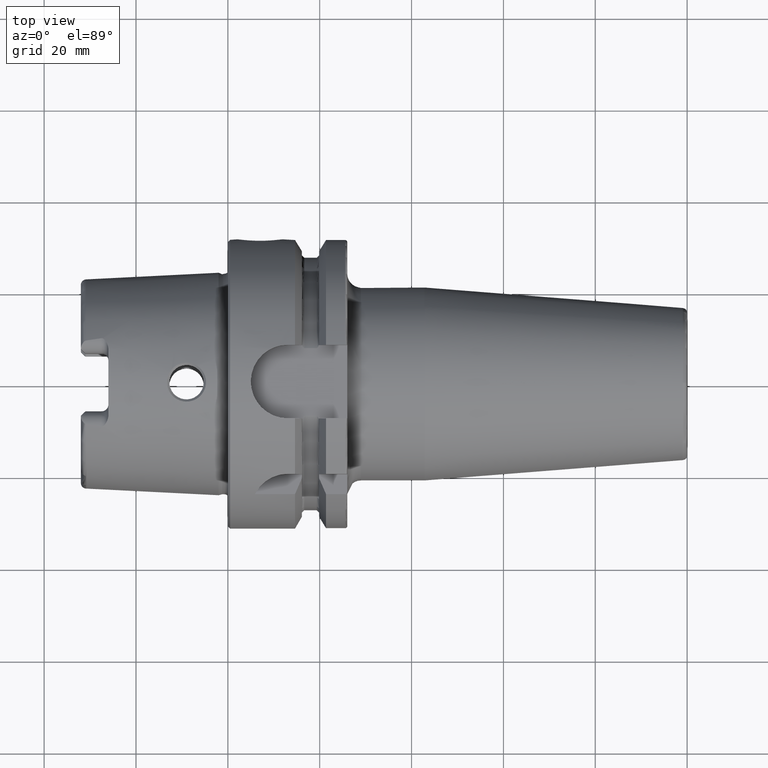
[diagram: clean part render]
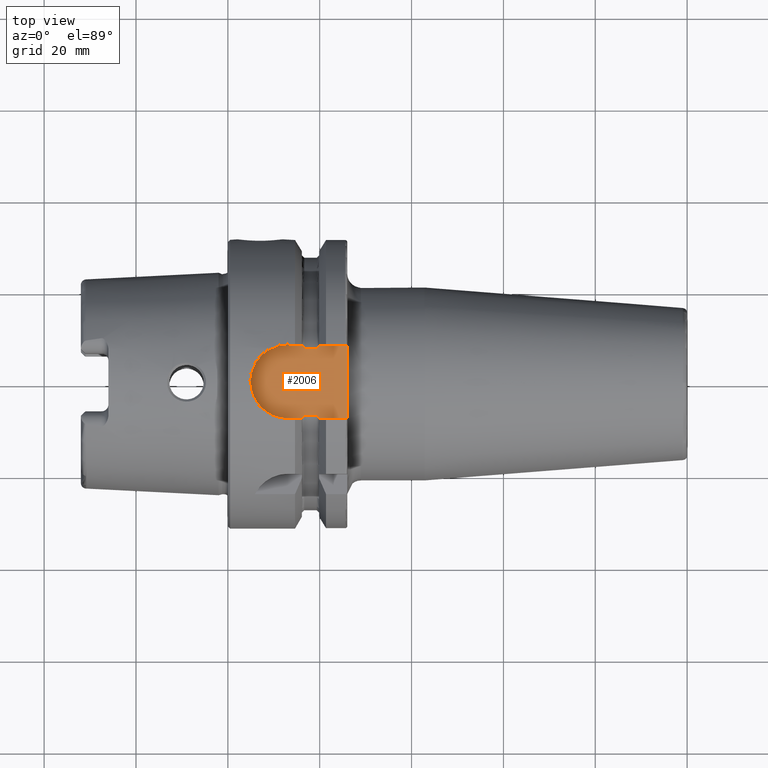
[diagram: same view with one face highlighted and labeled with its STEP entity id]
A machine part, top view. The second image highlights one B-rep face of the part: STEP entity #2006.
In plain terms, the highlighted planar face has unit normal (0, 0, 1).
Its self-contained STEP definition (entity closure, byte-faithful):
#76=B_SPLINE_CURVE_WITH_KNOTS('',3,(#4049,#4050,#4051,#4052,#4053,#4054,
#4055,#4056,#4057,#4058),.UNSPECIFIED.,.F.,.F.,(4,2,2,2,4),(0.252714277572707,
0.289228035148658,0.316691561230897,0.323545183976989,0.328785692776271),
 .UNSPECIFIED.);
#77=B_SPLINE_CURVE_WITH_KNOTS('',3,(#4064,#4065,#4066,#4067,#4068,#4069,
#4070,#4071,#4072,#4073),.UNSPECIFIED.,.F.,.F.,(4,2,2,2,4),(0.328785692776271,
0.334026201575553,0.340879824321645,0.368343350403883,0.404857107979834),
 .UNSPECIFIED.);
#80=B_SPLINE_CURVE_WITH_KNOTS('',3,(#4118,#4119,#4120,#4121,#4122,#4123,
#4124,#4125,#4126,#4127),.UNSPECIFIED.,.F.,.F.,(4,2,2,2,4),(0.32878569277627,
0.334026201575551,0.340879824321645,0.368343350403882,0.404857107979833),
 .UNSPECIFIED.);
#83=B_SPLINE_CURVE_WITH_KNOTS('',3,(#4144,#4145,#4146,#4147,#4148,#4149,
#4150,#4151,#4152,#4153),.UNSPECIFIED.,.F.,.F.,(4,2,2,2,4),(0.252714277572707,
0.289228035148658,0.316691561230896,0.323545183976989,0.32878569277627),
 .UNSPECIFIED.);
#139=PLANE('',#2228);
#281=FACE_OUTER_BOUND('',#403,.T.);
#403=EDGE_LOOP('',(#1701,#1702,#1703,#1704,#1705,#1706,#1707,#1708,#1709,
#1710,#1711,#1712));
#459=LINE('',#2972,#565);
#529=LINE('',#4103,#635);
#530=LINE('',#4108,#636);
#532=LINE('',#4157,#638);
#533=LINE('',#4160,#639);
#537=LINE('',#4192,#643);
#539=LINE('',#4195,#645);
#565=VECTOR('',#2376,10.);
#635=VECTOR('',#2680,10.);
#636=VECTOR('',#2687,10.);
#638=VECTOR('',#2705,10.);
#639=VECTOR('',#2708,10.);
#643=VECTOR('',#2718,10.);
#645=VECTOR('',#2722,10.);
#738=CIRCLE('',#2225,8.);
#805=VERTEX_POINT('',#2969);
#806=VERTEX_POINT('',#2971);
#940=VERTEX_POINT('',#4041);
#941=VERTEX_POINT('',#4048);
#942=VERTEX_POINT('',#4061);
#943=VERTEX_POINT('',#4063);
#946=VERTEX_POINT('',#4102);
#947=VERTEX_POINT('',#4106);
#949=VERTEX_POINT('',#4117);
#951=VERTEX_POINT('',#4137);
#952=VERTEX_POINT('',#4159);
#956=VERTEX_POINT('',#4188);
#1012=EDGE_CURVE('',#805,#806,#459,.T.);
#1196=EDGE_CURVE('',#940,#941,#76,.T.);
#1199=EDGE_CURVE('',#942,#943,#77,.T.);
#1207=EDGE_CURVE('',#941,#946,#529,.T.);
#1210=EDGE_CURVE('',#947,#942,#530,.T.);
#1213=EDGE_CURVE('',#946,#949,#80,.T.);
#1217=EDGE_CURVE('',#951,#947,#83,.T.);
#1219=EDGE_CURVE('',#951,#806,#532,.T.);
#1220=EDGE_CURVE('',#952,#943,#533,.T.);
#1225=EDGE_CURVE('',#956,#952,#738,.T.);
#1227=EDGE_CURVE('',#805,#949,#537,.T.);
#1229=EDGE_CURVE('',#940,#956,#539,.T.);
#1701=ORIENTED_EDGE('',*,*,#1199,.F.);
#1702=ORIENTED_EDGE('',*,*,#1210,.F.);
#1703=ORIENTED_EDGE('',*,*,#1217,.F.);
#1704=ORIENTED_EDGE('',*,*,#1219,.T.);
#1705=ORIENTED_EDGE('',*,*,#1012,.F.);
#1706=ORIENTED_EDGE('',*,*,#1227,.T.);
#1707=ORIENTED_EDGE('',*,*,#1213,.F.);
#1708=ORIENTED_EDGE('',*,*,#1207,.F.);
#1709=ORIENTED_EDGE('',*,*,#1196,.F.);
#1710=ORIENTED_EDGE('',*,*,#1229,.T.);
#1711=ORIENTED_EDGE('',*,*,#1225,.T.);
#1712=ORIENTED_EDGE('',*,*,#1220,.T.);
#2006=ADVANCED_FACE('',(#281),#139,.T.);
#2225=AXIS2_PLACEMENT_3D('',#4189,#2713,#2714);
#2228=AXIS2_PLACEMENT_3D('',#4196,#2723,#2724);
#2376=DIRECTION('',(0.,-1.,0.));
#2680=DIRECTION('',(1.,0.,0.));
#2687=DIRECTION('',(-1.,0.,0.));
#2705=DIRECTION('',(1.,3.41607084500048E-16,0.));
#2708=DIRECTION('',(1.,3.41607084500048E-16,0.));
#2713=DIRECTION('center_axis',(0.,0.,1.));
#2714=DIRECTION('ref_axis',(0.,1.,0.));
#2718=DIRECTION('',(-1.,-2.56205313375036E-16,0.));
#2722=DIRECTION('',(-1.,-2.56205313375036E-16,0.));
#2723=DIRECTION('center_axis',(0.,0.,1.));
#2724=DIRECTION('ref_axis',(1.,0.,0.));
#2969=CARTESIAN_POINT('',(26.,8.,26.5));
#2971=CARTESIAN_POINT('',(26.,-8.,26.5));
#2972=CARTESIAN_POINT('',(26.,5.55111512312578E-16,26.5));
#4041=CARTESIAN_POINT('',(16.2397987608563,8.,26.5));
#4048=CARTESIAN_POINT('',(16.625,7.34846922834952,26.5));
#4049=CARTESIAN_POINT('Ctrl Pts',(16.2397987608563,8.,26.5));
#4050=CARTESIAN_POINT('Ctrl Pts',(16.2699372185845,7.87398729043679,26.5));
#4051=CARTESIAN_POINT('Ctrl Pts',(16.3063113289614,7.75248496685372,26.5));
#4052=CARTESIAN_POINT('Ctrl Pts',(16.3906456489289,7.5566112023157,26.5));
#4053=CARTESIAN_POINT('Ctrl Pts',(16.4411490019356,7.4590543697872,26.5));
#4054=CARTESIAN_POINT('Ctrl Pts',(16.5270295504762,7.38349170057081,26.5));
#4055=CARTESIAN_POINT('Ctrl Pts',(16.5496994821687,7.36807649661538,26.5));
#4056=CARTESIAN_POINT('Ctrl Pts',(16.587038394856,7.35287762173868,26.5));
#4057=CARTESIAN_POINT('Ctrl Pts',(16.6075316373357,7.34846922834952,26.5));
#4058=CARTESIAN_POINT('Ctrl Pts',(16.625,7.34846922834952,26.5));
#4061=CARTESIAN_POINT('',(16.625,-7.34846922834952,26.5));
#4063=CARTESIAN_POINT('',(16.2397987608563,-8.,26.5));
#4064=CARTESIAN_POINT('Ctrl Pts',(16.625,-7.34846922834952,26.5));
#4065=CARTESIAN_POINT('Ctrl Pts',(16.6075316373357,-7.34846922834952,26.5));
#4066=CARTESIAN_POINT('Ctrl Pts',(16.587038394856,-7.35287762173868,26.5));
#4067=CARTESIAN_POINT('Ctrl Pts',(16.5496994821687,-7.36807649661538,26.5));
#4068=CARTESIAN_POINT('Ctrl Pts',(16.5270295504762,-7.38349170057081,26.5));
#4069=CARTESIAN_POINT('Ctrl Pts',(16.4411490019356,-7.4590543697872,26.5));
#4070=CARTESIAN_POINT('Ctrl Pts',(16.3906456489289,-7.5566112023157,26.5));
#4071=CARTESIAN_POINT('Ctrl Pts',(16.3063113289614,-7.75248496685372,26.5));
#4072=CARTESIAN_POINT('Ctrl Pts',(16.2699372185845,-7.87398729043679,26.5));
#4073=CARTESIAN_POINT('Ctrl Pts',(16.2397987608563,-8.,26.5));
#4102=CARTESIAN_POINT('',(19.375,7.34846922834952,26.5));
#4103=CARTESIAN_POINT('',(18.,7.34846922834952,26.5));
#4106=CARTESIAN_POINT('',(19.375,-7.34846922834952,26.5));
#4108=CARTESIAN_POINT('',(18.,-7.34846922834952,26.5));
#4117=CARTESIAN_POINT('',(19.7602012391437,8.,26.5));
#4118=CARTESIAN_POINT('Ctrl Pts',(19.375,7.34846922834952,26.5));
#4119=CARTESIAN_POINT('Ctrl Pts',(19.3924683626643,7.34846922834952,26.5));
#4120=CARTESIAN_POINT('Ctrl Pts',(19.412961605144,7.35287762173868,26.5));
#4121=CARTESIAN_POINT('Ctrl Pts',(19.4503005178313,7.36807649661538,26.5));
#4122=CARTESIAN_POINT('Ctrl Pts',(19.4729704495238,7.38349170057082,26.5));
#4123=CARTESIAN_POINT('Ctrl Pts',(19.5588509980644,7.45905436978721,26.5));
#4124=CARTESIAN_POINT('Ctrl Pts',(19.6093543510711,7.5566112023157,26.5));
#4125=CARTESIAN_POINT('Ctrl Pts',(19.6936886710386,7.75248496685372,26.5));
#4126=CARTESIAN_POINT('Ctrl Pts',(19.7300627814155,7.87398729043679,26.5));
#4127=CARTESIAN_POINT('Ctrl Pts',(19.7602012391437,8.,26.5));
#4137=CARTESIAN_POINT('',(19.7602012391437,-8.,26.5));
#4144=CARTESIAN_POINT('Ctrl Pts',(19.7602012391436,-8.,26.5));
#4145=CARTESIAN_POINT('Ctrl Pts',(19.7300627814155,-7.87398729043679,26.5));
#4146=CARTESIAN_POINT('Ctrl Pts',(19.6936886710386,-7.75248496685372,26.5));
#4147=CARTESIAN_POINT('Ctrl Pts',(19.6093543510711,-7.5566112023157,26.5));
#4148=CARTESIAN_POINT('Ctrl Pts',(19.5588509980644,-7.45905436978721,26.5));
#4149=CARTESIAN_POINT('Ctrl Pts',(19.4729704495238,-7.38349170057082,26.5));
#4150=CARTESIAN_POINT('Ctrl Pts',(19.4503005178313,-7.36807649661538,26.5));
#4151=CARTESIAN_POINT('Ctrl Pts',(19.412961605144,-7.35287762173868,26.5));
#4152=CARTESIAN_POINT('Ctrl Pts',(19.3924683626643,-7.34846922834952,26.5));
#4153=CARTESIAN_POINT('Ctrl Pts',(19.375,-7.34846922834952,26.5));
#4157=CARTESIAN_POINT('',(13.,-8.,26.5));
#4159=CARTESIAN_POINT('',(13.,-8.,26.5));
#4160=CARTESIAN_POINT('',(13.,-8.,26.5));
#4188=CARTESIAN_POINT('',(13.,8.,26.5));
#4189=CARTESIAN_POINT('Origin',(13.,0.,26.5));
#4192=CARTESIAN_POINT('',(26.,8.,26.5));
#4195=CARTESIAN_POINT('',(26.,8.,26.5));
#4196=CARTESIAN_POINT('Origin',(15.5,1.11022302462516E-15,26.5));